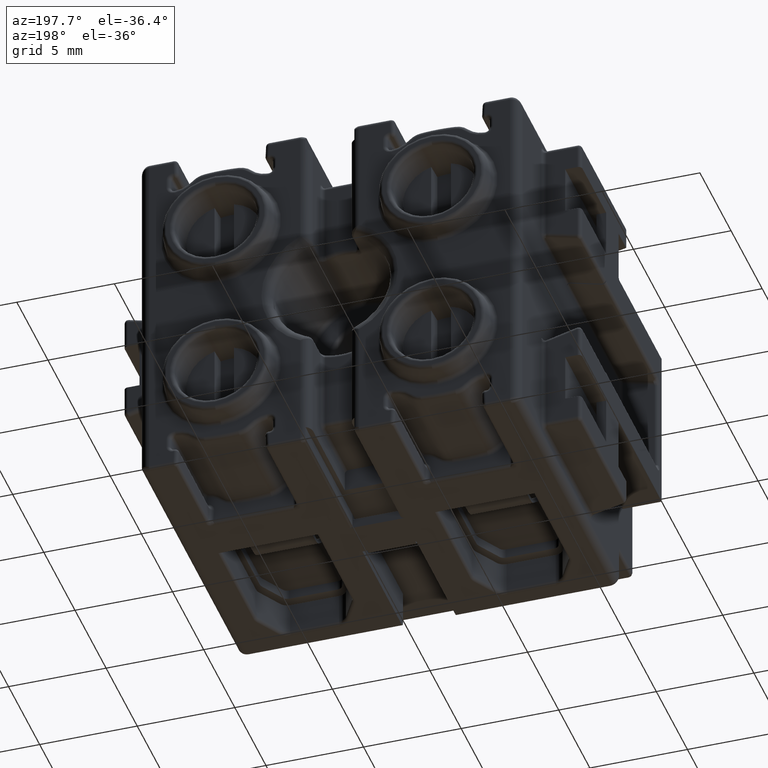
[diagram: clean part render]
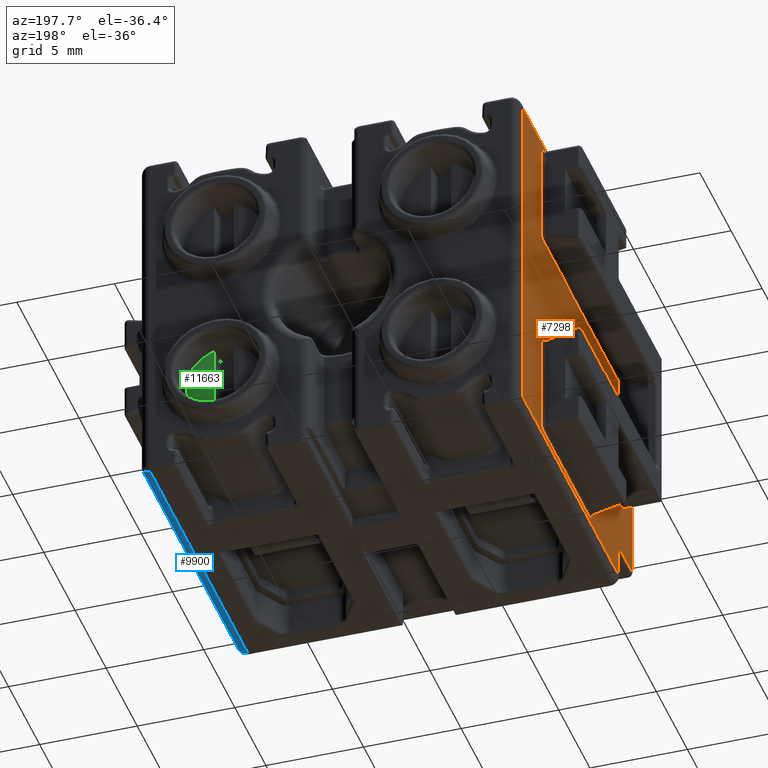
[diagram: same view with three faces highlighted in distinct colors, each labeled with its STEP entity id]
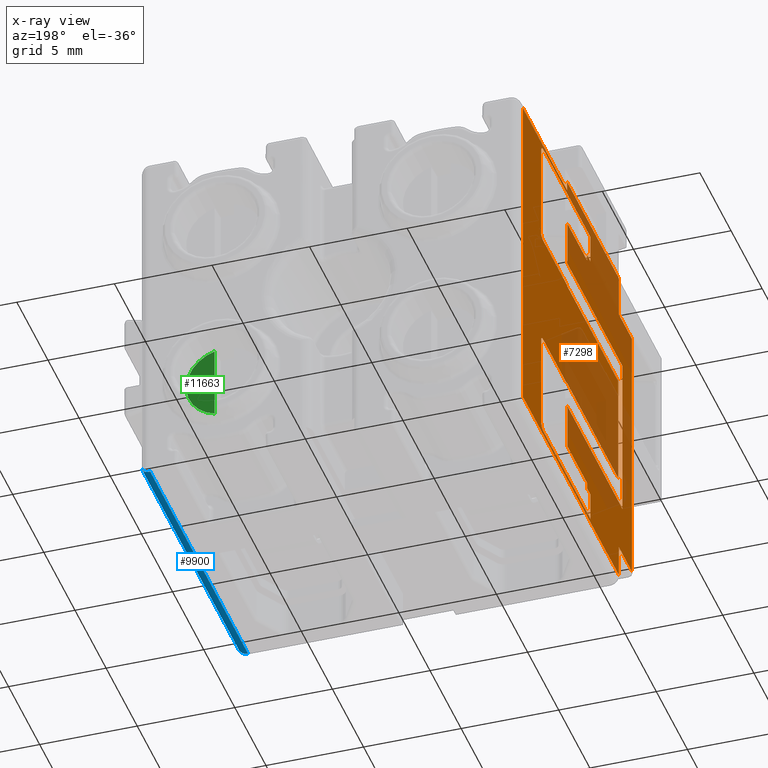
[diagram: x-ray of the same camera — body ghosted, the three highlighted faces saturated]
A machine part, auxiliary view with three faces highlighted in distinct colors.
The next image is the same camera in x-ray (body ghosted, the three faces saturated) — at least one of them is partly hidden behind the body in this view.
Their STEP definitions:

[orange] entity #7298 — the highlighted planar face has unit normal (-1, 0, 0).
#2778 = VECTOR ( 'NONE', #26738, 1000.000000000000000 ) ;
#3091 = VECTOR ( 'NONE', #26439, 1000.000000000000000 ) ;
#3103 = VECTOR ( 'NONE', #31110, 1000.000000000000000 ) ;
#3116 = VECTOR ( 'NONE', #26464, 1000.000000000000000 ) ;
#3161 = VECTOR ( 'NONE', #26434, 1000.000000000000000 ) ;
#3963 = CARTESIAN_POINT ( 'NONE',  ( -0.7434446301121630000, 43.74973753280829700, -18.92283801961510300 ) ) ;
#3972 = CARTESIAN_POINT ( 'NONE',  ( -0.7434446301121630000, 28.34973753280830200, -0.9228380196151170200 ) ) ;
#3982 = CARTESIAN_POINT ( 'NONE',  ( -0.7434446301121630000, 40.44973753280830000, -13.17259704189269900 ) ) ;
#3994 = CARTESIAN_POINT ( 'NONE',  ( -0.7434446301121630000, 40.84973753280829100, -6.856710428136580000 ) ) ;
#3995 = CARTESIAN_POINT ( 'NONE',  ( -0.7434446301121630000, 26.24973753280830000, -17.22283801961510400 ) ) ;
#3997 = CARTESIAN_POINT ( 'NONE',  ( -0.7434446301121630000, 40.84973753280829100, -13.48896561109364200 ) ) ;
#4001 = CARTESIAN_POINT ( 'NONE',  ( -0.7434446301121630000, 40.84973753280829100, -18.32283801961514800 ) ) ;
#4010 = CARTESIAN_POINT ( 'NONE',  ( -0.7434446301121631100, 33.42916039621430700, -16.92283801961509900 ) ) ;
#4278 = EDGE_LOOP ( 'NONE', ( #4649, #4703, #4643, #4598, #4607, #4610, #4608, #4639, #4668, #4618 ) ) ;
#4310 = EDGE_LOOP ( 'NONE', ( #4569, #4640, #4628, #4597, #4533, #4641, #4551, #4654, #4563, #4580, #4631, #4592, #4537, #4564, #4651, #4637, #4681, #4595, #4658, #4684, #4718, #4601, #4646, #4596, #4604, #4657, #4647, #4630, #4635, #4591, #4673, #4627 ) ) ;
#4533 = ORIENTED_EDGE ( 'NONE', *, *, #11942, .T. ) ;
#4537 = ORIENTED_EDGE ( 'NONE', *, *, #7374, .T. ) ;
#4551 = ORIENTED_EDGE ( 'NONE', *, *, #7364, .T. ) ;
#4563 = ORIENTED_EDGE ( 'NONE', *, *, #7372, .T. ) ;
#4564 = ORIENTED_EDGE ( 'NONE', *, *, #7377, .T. ) ;
#4569 = ORIENTED_EDGE ( 'NONE', *, *, #7379, .T. ) ;
#4580 = ORIENTED_EDGE ( 'NONE', *, *, #7581, .T. ) ;
#4591 = ORIENTED_EDGE ( 'NONE', *, *, #11936, .T. ) ;
#4592 = ORIENTED_EDGE ( 'NONE', *, *, #7384, .T. ) ;
#4595 = ORIENTED_EDGE ( 'NONE', *, *, #11947, .T. ) ;
#4596 = ORIENTED_EDGE ( 'NONE', *, *, #7590, .T. ) ;
#4597 = ORIENTED_EDGE ( 'NONE', *, *, #11956, .T. ) ;
#4598 = ORIENTED_EDGE ( 'NONE', *, *, #7370, .T. ) ;
#4601 = ORIENTED_EDGE ( 'NONE', *, *, #7404, .T. ) ;
#4604 = ORIENTED_EDGE ( 'NONE', *, *, #7376, .T. ) ;
#4607 = ORIENTED_EDGE ( 'NONE', *, *, #7381, .T. ) ;
#4608 = ORIENTED_EDGE ( 'NONE', *, *, #31182, .T. ) ;
#4610 = ORIENTED_EDGE ( 'NONE', *, *, #31207, .T. ) ;
#4618 = ORIENTED_EDGE ( 'NONE', *, *, #31175, .T. ) ;
#4627 = ORIENTED_EDGE ( 'NONE', *, *, #11781, .T. ) ;
#4628 = ORIENTED_EDGE ( 'NONE', *, *, #7471, .T. ) ;
#4630 = ORIENTED_EDGE ( 'NONE', *, *, #7367, .T. ) ;
#4631 = ORIENTED_EDGE ( 'NONE', *, *, #7385, .F. ) ;
#4635 = ORIENTED_EDGE ( 'NONE', *, *, #11919, .T. ) ;
#4637 = ORIENTED_EDGE ( 'NONE', *, *, #7383, .T. ) ;
#4639 = ORIENTED_EDGE ( 'NONE', *, *, #7484, .F. ) ;
#4640 = ORIENTED_EDGE ( 'NONE', *, *, #11785, .F. ) ;
#4641 = ORIENTED_EDGE ( 'NONE', *, *, #7373, .T. ) ;
#4643 = ORIENTED_EDGE ( 'NONE', *, *, #7408, .T. ) ;
#4646 = ORIENTED_EDGE ( 'NONE', *, *, #7375, .F. ) ;
#4647 = ORIENTED_EDGE ( 'NONE', *, *, #7393, .F. ) ;
#4649 = ORIENTED_EDGE ( 'NONE', *, *, #7421, .T. ) ;
#4651 = ORIENTED_EDGE ( 'NONE', *, *, #7585, .F. ) ;
#4654 = ORIENTED_EDGE ( 'NONE', *, *, #7559, .T. ) ;
#4657 = ORIENTED_EDGE ( 'NONE', *, *, #7675, .F. ) ;
#4658 = ORIENTED_EDGE ( 'NONE', *, *, #7504, .F. ) ;
#4668 = ORIENTED_EDGE ( 'NONE', *, *, #31200, .T. ) ;
#4673 = ORIENTED_EDGE ( 'NONE', *, *, #7410, .T. ) ;
#4681 = ORIENTED_EDGE ( 'NONE', *, *, #7380, .T. ) ;
#4684 = ORIENTED_EDGE ( 'NONE', *, *, #11927, .T. ) ;
#4703 = ORIENTED_EDGE ( 'NONE', *, *, #7369, .T. ) ;
#4718 = ORIENTED_EDGE ( 'NONE', *, *, #7402, .T. ) ;
#5198 = CARTESIAN_POINT ( 'NONE',  ( -0.7434446301121630000, 32.89326201135205000, -1.622838019615115100 ) ) ;
#5199 = CARTESIAN_POINT ( 'NONE',  ( -0.7434446301121630000, 36.64973753280830200, -13.12083323287220100 ) ) ;
#5237 = CARTESIAN_POINT ( 'NONE',  ( -0.7434446301121631100, 33.42916039621430700, -3.422838019615116200 ) ) ;
#5260 = CARTESIAN_POINT ( 'NONE',  ( -0.7434446301121630000, 40.44973753280830000, -18.72283801961515000 ) ) ;
#5263 = CARTESIAN_POINT ( 'NONE',  ( -0.7434446301121630000, 33.42916039621430700, -3.097838019615115200 ) ) ;
#5267 = CARTESIAN_POINT ( 'NONE',  ( -0.7434446301121630000, 28.34973753280830200, -17.22283801961510400 ) ) ;
#5270 = CARTESIAN_POINT ( 'NONE',  ( -0.7434446301121630000, 28.34973753280830200, -18.92283801961510300 ) ) ;
#5279 = CARTESIAN_POINT ( 'NONE',  ( -0.7434446301121630000, 32.89326201135205000, -17.24783801961509900 ) ) ;
#5282 = CARTESIAN_POINT ( 'NONE',  ( -0.7434446301121630000, 40.84973753280829100, -2.022838019615115000 ) ) ;
#5284 = CARTESIAN_POINT ( 'NONE',  ( -0.7434446301121630000, 43.74973753280829700, -1.422838019615118000 ) ) ;
#5289 = CARTESIAN_POINT ( 'NONE',  ( -0.7434446301121630000, 40.44973753280830000, -1.622838019615115100 ) ) ;
#5290 = CARTESIAN_POINT ( 'NONE',  ( -0.7434446301121630000, 28.44973753280830000, -13.12083323287220100 ) ) ;
#5293 = CARTESIAN_POINT ( 'NONE',  ( -0.7434446301121630000, 36.64973753280830200, -13.17259704189269900 ) ) ;
#5303 = CARTESIAN_POINT ( 'NONE',  ( -0.7434446301121630000, 28.34973753280830200, -3.122838019615115100 ) ) ;
#5305 = CARTESIAN_POINT ( 'NONE',  ( -0.7434446301121630000, 26.24973753280830000, -3.122838019615120000 ) ) ;
#5322 = VECTOR ( 'NONE', #30556, 1000.000000000000000 ) ;
#5323 = VECTOR ( 'NONE', #30640, 1000.000000000000000 ) ;
#5324 = VECTOR ( 'NONE', #30610, 1000.000000000000000 ) ;
#5346 = VECTOR ( 'NONE', #30634, 1000.000000000000000 ) ;
#5354 = VECTOR ( 'NONE', #30677, 1000.000000000000000 ) ;
#5406 = VECTOR ( 'NONE', #30878, 1000.000000000000000 ) ;
#5426 = VECTOR ( 'NONE', #30970, 1000.000000000000000 ) ;
#5475 = VECTOR ( 'NONE', #30855, 1000.000000000000000 ) ;
#5639 = AXIS2_PLACEMENT_3D ( 'NONE', #30164, #30137, #30184 ) ;
#5690 = VERTEX_POINT ( 'NONE', #5199 ) ;
#5718 = VERTEX_POINT ( 'NONE', #5198 ) ;
#5757 = VERTEX_POINT ( 'NONE', #5293 ) ;
#5766 = VERTEX_POINT ( 'NONE', #5260 ) ;
#5781 = VECTOR ( 'NONE', #30530, 1000.000000000000000 ) ;
#5788 = VERTEX_POINT ( 'NONE', #5279 ) ;
#5789 = VERTEX_POINT ( 'NONE', #5263 ) ;
#5791 = VERTEX_POINT ( 'NONE', #5289 ) ;
#5792 = VECTOR ( 'NONE', #30460, 1000.000000000000000 ) ;
#5793 = VERTEX_POINT ( 'NONE', #5290 ) ;
#5794 = CIRCLE ( 'NONE', #5808, 0.3999999999999999700 ) ;
#5797 = VECTOR ( 'NONE', #30478, 1000.000000000000000 ) ;
#5801 = VECTOR ( 'NONE', #30538, 1000.000000000000000 ) ;
#5803 = VECTOR ( 'NONE', #30510, 1000.000000000000000 ) ;
#5806 = VERTEX_POINT ( 'NONE', #5267 ) ;
#5808 = AXIS2_PLACEMENT_3D ( 'NONE', #30519, #30520, #30521 ) ;
#5818 = VERTEX_POINT ( 'NONE', #5284 ) ;
#5817 = VECTOR ( 'NONE', #30540, 1000.000000000000000 ) ;
#5823 = VERTEX_POINT ( 'NONE', #5237 ) ;
#5824 = VECTOR ( 'NONE', #30528, 1000.000000000000000 ) ;
#5829 = VERTEX_POINT ( 'NONE', #5270 ) ;
#5834 = VECTOR ( 'NONE', #30467, 1000.000000000000000 ) ;
#5843 = VERTEX_POINT ( 'NONE', #5282 ) ;
#5850 = VECTOR ( 'NONE', #30539, 1000.000000000000000 ) ;
#5852 = VECTOR ( 'NONE', #30503, 1000.000000000000000 ) ;
#5856 = VECTOR ( 'NONE', #30590, 1000.000000000000000 ) ;
#5858 = VECTOR ( 'NONE', #30506, 1000.000000000000000 ) ;
#5864 = VERTEX_POINT ( 'NONE', #5303 ) ;
#5865 = VECTOR ( 'NONE', #30481, 1000.000000000000000 ) ;
#5873 = VERTEX_POINT ( 'NONE', #5305 ) ;
#5874 = CIRCLE ( 'NONE', #5892, 0.4000000000000010200 ) ;
#5888 = VERTEX_POINT ( 'NONE', #4010 ) ;
#5892 = AXIS2_PLACEMENT_3D ( 'NONE', #30586, #30554, #30553 ) ;
#5902 = VERTEX_POINT ( 'NONE', #3994 ) ;
#5903 = VERTEX_POINT ( 'NONE', #3995 ) ;
#5929 = VERTEX_POINT ( 'NONE', #3997 ) ;
#5930 = VERTEX_POINT ( 'NONE', #3963 ) ;
#5939 = VERTEX_POINT ( 'NONE', #3972 ) ;
#5941 = VERTEX_POINT ( 'NONE', #4001 ) ;
#5944 = VERTEX_POINT ( 'NONE', #3982 ) ;
#7298 = ADVANCED_FACE ( 'NONE', ( #30140, #30136 ), #30175, .T. ) ;
#7364 = EDGE_CURVE ( 'NONE', #5888, #21027, #30477, .T. ) ;
#7367 = EDGE_CURVE ( 'NONE', #5823, #20848, #30491, .T. ) ;
#7369 = EDGE_CURVE ( 'NONE', #5829, #5806, #30466, .T. ) ;
#7370 = EDGE_CURVE ( 'NONE', #5903, #5873, #30468, .T. ) ;
#7372 = EDGE_CURVE ( 'NONE', #5788, #21059, #30469, .T. ) ;
#7373 = EDGE_CURVE ( 'NONE', #20963, #5888, #30545, .T. ) ;
#7374 = EDGE_CURVE ( 'NONE', #5929, #5944, #17002, .T. ) ;
#7375 = EDGE_CURVE ( 'NONE', #5791, #5843, #5794, .T. ) ;
#7376 = EDGE_CURVE ( 'NONE', #5718, #21034, #30546, .T. ) ;
#7377 = EDGE_CURVE ( 'NONE', #5944, #5757, #30523, .T. ) ;
#7379 = EDGE_CURVE ( 'NONE', #20799, #20792, #30501, .T. ) ;
#7380 = EDGE_CURVE ( 'NONE', #5793, #20644, #30527, .T. ) ;
#7381 = EDGE_CURVE ( 'NONE', #5873, #5864, #30542, .T. ) ;
#7383 = EDGE_CURVE ( 'NONE', #5690, #5793, #30534, .T. ) ;
#7384 = EDGE_CURVE ( 'NONE', #5941, #5929, #30508, .T. ) ;
#7385 = EDGE_CURVE ( 'NONE', #5941, #5766, #5874, .T. ) ;
#7393 = EDGE_CURVE ( 'NONE', #5823, #5789, #30589, .T. ) ;
#7402 = EDGE_CURVE ( 'NONE', #20702, #5902, #16995, .T. ) ;
#7404 = EDGE_CURVE ( 'NONE', #5902, #5843, #30606, .T. ) ;
#7408 = EDGE_CURVE ( 'NONE', #5806, #5903, #30600, .T. ) ;
#7410 = EDGE_CURVE ( 'NONE', #20999, #20767, #30622, .T. ) ;
#7421 = EDGE_CURVE ( 'NONE', #5930, #5829, #30673, .T. ) ;
#7471 = EDGE_CURVE ( 'NONE', #20811, #20887, #30803, .T. ) ;
#7484 = EDGE_CURVE ( 'NONE', #20934, #21035, #30843, .T. ) ;
#7504 = EDGE_CURVE ( 'NONE', #20690, #20694, #30893, .T. ) ;
#7559 = EDGE_CURVE ( 'NONE', #21027, #5788, #31078, .T. ) ;
#7581 = EDGE_CURVE ( 'NONE', #21059, #5766, #26453, .T. ) ;
#7585 = EDGE_CURVE ( 'NONE', #5690, #5757, #26427, .T. ) ;
#7590 = EDGE_CURVE ( 'NONE', #5791, #5718, #26457, .T. ) ;
#7675 = EDGE_CURVE ( 'NONE', #5789, #21034, #26711, .T. ) ;
#10361 = CARTESIAN_POINT ( 'NONE',  ( -0.7434446301121630000, 28.44973753280830000, -7.224842806358029900 ) ) ;
#10425 = CARTESIAN_POINT ( 'NONE',  ( -0.7434446301121630000, 36.64973753280830200, -7.224842806358020100 ) ) ;
#10431 = CARTESIAN_POINT ( 'NONE',  ( -0.7434446301121630000, 36.64973753280830200, -7.173078997337520400 ) ) ;
#10437 = CARTESIAN_POINT ( 'NONE',  ( -0.7434446301121630000, 40.44973753280830000, -7.173078997337520400 ) ) ;
#10497 = CARTESIAN_POINT ( 'NONE',  ( -0.7434446301121630000, 36.64973753280830200, -5.847838019615110700 ) ) ;
#10499 = CARTESIAN_POINT ( 'NONE',  ( -0.7434446301121630000, 27.74973753280830000, -14.49783801961510000 ) ) ;
#10512 = CARTESIAN_POINT ( 'NONE',  ( -0.7434446301121630000, 27.74973753280830000, -5.847838019615109900 ) ) ;
#10561 = CARTESIAN_POINT ( 'NONE',  ( -0.7434446301058295100, 36.63447075656644400, -14.62297125076029900 ) ) ;
#10562 = CARTESIAN_POINT ( 'NONE',  ( -0.7434446301121630000, 36.63447075656391400, -3.422838019615116200 ) ) ;
#10573 = CARTESIAN_POINT ( 'NONE',  ( -0.7434446301121630000, 36.64973753280830200, -14.49783801961510000 ) ) ;
#10588 = CARTESIAN_POINT ( 'NONE',  ( -0.7434446301121630000, 36.64973753280830200, -14.62283801961875100 ) ) ;
#10648 = CARTESIAN_POINT ( 'NONE',  ( -0.7434446301121630000, 36.63447075656391400, -16.92283801961509900 ) ) ;
#10675 = CARTESIAN_POINT ( 'NONE',  ( -0.7434446301121630000, 36.64973753280830200, -1.422838019615117800 ) ) ;
#10691 = CARTESIAN_POINT ( 'NONE',  ( -0.7434446301121632200, 36.63447075656434000, -5.722704788469895800 ) ) ;
#10714 = CARTESIAN_POINT ( 'NONE',  ( -0.7434446301121630000, 36.64973753280830200, -5.722838019607459100 ) ) ;
#10727 = CARTESIAN_POINT ( 'NONE',  ( -0.7434446301121630000, 32.89326201135205000, -18.72283801961510000 ) ) ;
#10745 = CARTESIAN_POINT ( 'NONE',  ( -0.7434446301121630000, 32.89326201135205000, -3.097838019615115200 ) ) ;
#10746 = CARTESIAN_POINT ( 'NONE',  ( -0.7434446301121630000, 33.42916039621430700, -17.24783801961509900 ) ) ;
#10747 = CARTESIAN_POINT ( 'NONE',  ( -0.7434446301121630000, 36.64973753280830200, -0.9228380196151170200 ) ) ;
#10834 = LINE ( 'NONE', #10841, #17475 ) ;
#10836 = DIRECTION ( 'NONE',  ( -0.0000000000000000000, -0.0000000000000000000, -1.000000000000000000 ) ) ;
#10841 = CARTESIAN_POINT ( 'NONE',  ( -0.7434446301121630000, 43.74973753280829700, -39.06492826032194900 ) ) ;
#10849 = LINE ( 'NONE', #10864, #17525 ) ;
#10858 = DIRECTION ( 'NONE',  ( 0.0000000000000000000, 1.000000000000000000, 0.0000000000000000000 ) ) ;
#10864 = CARTESIAN_POINT ( 'NONE',  ( -0.7434446301121630000, 27.24973753280830000, -0.9228380196151170200 ) ) ;
#10915 = LINE ( 'NONE', #10944, #17566 ) ;
#10916 = DIRECTION ( 'NONE',  ( -0.0000000000000000000, -0.0000000000000000000, 1.000000000000000000 ) ) ;
#10928 = CARTESIAN_POINT ( 'NONE',  ( -0.7434446301121630000, 26.74973753280830000, -1.422838019615118000 ) ) ;
#10940 = LINE ( 'NONE', #10928, #17678 ) ;
#10944 = CARTESIAN_POINT ( 'NONE',  ( -0.7434446301121630000, 28.34973753280830200, -39.06492826032194900 ) ) ;
#10957 = DIRECTION ( 'NONE',  ( 0.0000000000000000000, 1.000000000000000000, 0.0000000000000000000 ) ) ;
#11781 = EDGE_CURVE ( 'NONE', #20767, #20799, #13008, .T. ) ;
#11785 = EDGE_CURVE ( 'NONE', #20811, #20792, #13018, .T. ) ;
#11919 = EDGE_CURVE ( 'NONE', #20848, #20951, #21933, .T. ) ;
#11927 = EDGE_CURVE ( 'NONE', #20690, #20702, #22032, .T. ) ;
#11936 = EDGE_CURVE ( 'NONE', #20951, #20999, #22145, .T. ) ;
#11942 = EDGE_CURVE ( 'NONE', #20828, #20963, #22157, .T. ) ;
#11947 = EDGE_CURVE ( 'NONE', #20644, #20694, #22074, .T. ) ;
#11956 = EDGE_CURVE ( 'NONE', #20887, #20828, #22228, .T. ) ;
#13008 = LINE ( 'NONE', #13011, #24357 ) ;
#13011 = CARTESIAN_POINT ( 'NONE',  ( -0.7434446301121630000, 33.27033910919760000, -5.847838019615109900 ) ) ;
#13014 = DIRECTION ( 'NONE',  ( -0.0000000000000000000, -1.000000000000000000, -0.0000000000000000000 ) ) ;
#13018 = LINE ( 'NONE', #13051, #24451 ) ;
#13051 = CARTESIAN_POINT ( 'NONE',  ( -0.7434446301121630000, 33.27033910919760000, -14.49783801961510000 ) ) ;
#13062 = DIRECTION ( 'NONE',  ( 0.0000000000000000000, -1.000000000000000000, 0.0000000000000000000 ) ) ;
#16995 = B_SPLINE_CURVE_WITH_KNOTS ( 'NONE', 3,
 ( #30641, #30611, #30615, #30618, #30639, #30644, #30616, #30601, #30603, #30609 ),
 .UNSPECIFIED., .F., .F.,
 ( 4, 1, 1, 2, 2, 4 ),
 ( 0.0000000000000000000, 0.2499999999999965600, 0.3749999999999942800, 0.4374999999999931700, 0.4999999999999920100, 1.000000000000000000 ),
 .UNSPECIFIED. ) ;
#17002 = B_SPLINE_CURVE_WITH_KNOTS ( 'NONE', 3,
 ( #30511, #30516, #30525, #30547, #30549, #30531, #30509, #30548, #30513, #30518, #30517 ),
 .UNSPECIFIED., .F., .F.,
 ( 4, 1, 1, 1, 2, 2, 4 ),
 ( 0.0000000000000000000, 0.2500000000000366900, 0.3750000000000422400, 0.4375000000000416900, 0.4687500000000442400, 0.5000000000000468500, 1.000000000000000000 ),
 .UNSPECIFIED. ) ;
#17475 = VECTOR ( 'NONE', #10836, 1000.000000000000000 ) ;
#17525 = VECTOR ( 'NONE', #10858, 1000.000000000000000 ) ;
#17566 = VECTOR ( 'NONE', #10916, 1000.000000000000000 ) ;
#17678 = VECTOR ( 'NONE', #10957, 1000.000000000000000 ) ;
#20644 = VERTEX_POINT ( 'NONE', #10361 ) ;
#20690 = VERTEX_POINT ( 'NONE', #10431 ) ;
#20694 = VERTEX_POINT ( 'NONE', #10425 ) ;
#20702 = VERTEX_POINT ( 'NONE', #10437 ) ;
#20767 = VERTEX_POINT ( 'NONE', #10497 ) ;
#20792 = VERTEX_POINT ( 'NONE', #10499 ) ;
#20799 = VERTEX_POINT ( 'NONE', #10512 ) ;
#20811 = VERTEX_POINT ( 'NONE', #10573 ) ;
#20828 = VERTEX_POINT ( 'NONE', #10561 ) ;
#20848 = VERTEX_POINT ( 'NONE', #10562 ) ;
#20887 = VERTEX_POINT ( 'NONE', #10588 ) ;
#20934 = VERTEX_POINT ( 'NONE', #10675 ) ;
#20951 = VERTEX_POINT ( 'NONE', #10691 ) ;
#20963 = VERTEX_POINT ( 'NONE', #10648 ) ;
#20999 = VERTEX_POINT ( 'NONE', #10714 ) ;
#21027 = VERTEX_POINT ( 'NONE', #10746 ) ;
#21034 = VERTEX_POINT ( 'NONE', #10745 ) ;
#21035 = VERTEX_POINT ( 'NONE', #10747 ) ;
#21059 = VERTEX_POINT ( 'NONE', #10727 ) ;
#21933 = LINE ( 'NONE', #21968, #24840 ) ;
#21968 = CARTESIAN_POINT ( 'NONE',  ( -0.7434446301121630000, 36.63447075656644400, -16.95797843452565000 ) ) ;
#22026 = DIRECTION ( 'NONE',  ( 0.0000000000000000000, 1.000000000000000000, 0.0000000000000000000 ) ) ;
#22032 = LINE ( 'NONE', #22048, #24790 ) ;
#22048 = CARTESIAN_POINT ( 'NONE',  ( -0.7434446301121630000, 26.74973753280830000, -7.173078997337520400 ) ) ;
#22050 = DIRECTION ( 'NONE',  ( -5.637157407534230300E-013, 0.0000000000000000000, -1.000000000000000000 ) ) ;
#22072 = DIRECTION ( 'NONE',  ( 5.637157407534230300E-013, -0.0000000000000000000, -1.000000000000000000 ) ) ;
#22074 = LINE ( 'NONE', #22079, #24917 ) ;
#22079 = CARTESIAN_POINT ( 'NONE',  ( -0.7434446301121630000, 36.64973753280830200, -7.224842806358029900 ) ) ;
#22085 = CARTESIAN_POINT ( 'NONE',  ( -0.7434446301121630000, 36.63447075656644400, -3.387697604704555100 ) ) ;
#22089 = CARTESIAN_POINT ( 'NONE',  ( -0.7434446301121632200, 36.64973753280838100, -5.722838019607768200 ) ) ;
#22109 = DIRECTION ( 'NONE',  ( -0.0000000000000000000, 0.9999619230641713100, -0.008726535498373952000 ) ) ;
#22145 = LINE ( 'NONE', #22089, #24808 ) ;
#22157 = LINE ( 'NONE', #22085, #24834 ) ;
#22195 = DIRECTION ( 'NONE',  ( -0.0000000000000000000, 1.000000000000000000, -0.0000000000000000000 ) ) ;
#22203 = DIRECTION ( 'NONE',  ( -0.0000000000000000000, -0.9999619230641713100, -0.008726535498373952000 ) ) ;
#22228 = LINE ( 'NONE', #22237, #24911 ) ;
#22237 = CARTESIAN_POINT ( 'NONE',  ( -0.7434446301121632200, 36.64973753280838100, -14.62283801962244200 ) ) ;
#24357 = VECTOR ( 'NONE', #13014, 1000.000000000000000 ) ;
#24451 = VECTOR ( 'NONE', #13062, 1000.000000000000000 ) ;
#24790 = VECTOR ( 'NONE', #22026, 1000.000000000000000 ) ;
#24808 = VECTOR ( 'NONE', #22109, 1000.000000000000100 ) ;
#24834 = VECTOR ( 'NONE', #22072, 1000.000000000000000 ) ;
#24840 = VECTOR ( 'NONE', #22050, 1000.000000000000000 ) ;
#24911 = VECTOR ( 'NONE', #22203, 1000.000000000000100 ) ;
#24917 = VECTOR ( 'NONE', #22195, 1000.000000000000000 ) ;
#26427 = LINE ( 'NONE', #26445, #3091 ) ;
#26431 = CARTESIAN_POINT ( 'NONE',  ( -0.7434446301121630000, 36.64973753280830200, -18.72283801961510000 ) ) ;
#26434 = DIRECTION ( 'NONE',  ( 0.0000000000000000000, -1.000000000000000000, 0.0000000000000000000 ) ) ;
#26439 = DIRECTION ( 'NONE',  ( 0.0000000000000000000, 0.0000000000000000000, -1.000000000000000000 ) ) ;
#26445 = CARTESIAN_POINT ( 'NONE',  ( -0.7434446301121630000, 36.64973753280830200, -39.06492826032194900 ) ) ;
#26453 = LINE ( 'NONE', #26431, #3116 ) ;
#26457 = LINE ( 'NONE', #26462, #3161 ) ;
#26462 = CARTESIAN_POINT ( 'NONE',  ( -0.7434446301121630000, 28.34973753280830200, -1.622838019615115100 ) ) ;
#26464 = DIRECTION ( 'NONE',  ( -0.0000000000000000000, 1.000000000000000000, -0.0000000000000000000 ) ) ;
#26711 = LINE ( 'NONE', #26717, #2778 ) ;
#26717 = CARTESIAN_POINT ( 'NONE',  ( -0.7434446301121630000, 27.24973753280830000, -3.097838019615115200 ) ) ;
#26738 = DIRECTION ( 'NONE',  ( 0.0000000000000000000, -1.000000000000000000, 0.0000000000000000000 ) ) ;
#30136 = FACE_OUTER_BOUND ( 'NONE', #4278, .T. ) ;
#30137 = DIRECTION ( 'NONE',  ( -1.000000000000000000, 0.0000000000000000000, 0.0000000000000000000 ) ) ;
#30140 = FACE_BOUND ( 'NONE', #4310, .T. ) ;
#30164 = CARTESIAN_POINT ( 'NONE',  ( -0.7434446301121630000, 27.24973753280830000, -39.06492826032194900 ) ) ;
#30175 = PLANE ( 'NONE',  #5639 ) ;
#30184 = DIRECTION ( 'NONE',  ( 0.0000000000000000000, 0.0000000000000000000, -1.000000000000000000 ) ) ;
#30460 = DIRECTION ( 'NONE',  ( 0.0000000000000000000, 1.000000000000000000, 0.0000000000000000000 ) ) ;
#30465 = CARTESIAN_POINT ( 'NONE',  ( -0.7434446301121630000, 33.42916039621430700, -14.49783801961510000 ) ) ;
#30466 = LINE ( 'NONE', #30476, #5834 ) ;
#30467 = DIRECTION ( 'NONE',  ( 0.0000000000000000000, 0.0000000000000000000, 1.000000000000000000 ) ) ;
#30468 = LINE ( 'NONE', #30470, #5797 ) ;
#30469 = LINE ( 'NONE', #30485, #5781 ) ;
#30470 = CARTESIAN_POINT ( 'NONE',  ( -0.7434446301121630000, 26.24973753280830000, -39.06492826032194900 ) ) ;
#30476 = CARTESIAN_POINT ( 'NONE',  ( -0.7434446301121630000, 28.34973753280830200, -39.06492826032194900 ) ) ;
#30477 = LINE ( 'NONE', #30465, #5865 ) ;
#30478 = DIRECTION ( 'NONE',  ( -0.0000000000000000000, -0.0000000000000000000, 1.000000000000000000 ) ) ;
#30481 = DIRECTION ( 'NONE',  ( 0.0000000000000000000, 0.0000000000000000000, -1.000000000000000000 ) ) ;
#30485 = CARTESIAN_POINT ( 'NONE',  ( -0.7434446301121630000, 32.89326201135205000, -16.17283801961509900 ) ) ;
#30491 = LINE ( 'NONE', #30497, #5792 ) ;
#30497 = CARTESIAN_POINT ( 'NONE',  ( -0.7434446301121630000, 28.42847040651767900, -3.422838019615116200 ) ) ;
#30501 = LINE ( 'NONE', #30515, #5850 ) ;
#30503 = DIRECTION ( 'NONE',  ( 0.0000000000000000000, 0.0000000000000000000, 1.000000000000000000 ) ) ;
#30504 = CARTESIAN_POINT ( 'NONE',  ( -0.7434446301121630000, 27.24973753280830000, -3.122838019615120000 ) ) ;
#30506 = DIRECTION ( 'NONE',  ( 0.0000000000000000000, -1.000000000000000000, 0.0000000000000000000 ) ) ;
#30507 = CARTESIAN_POINT ( 'NONE',  ( -0.7434446301121630000, 32.89326201135205000, -16.17283801961509900 ) ) ;
#30508 = LINE ( 'NONE', #30512, #5856 ) ;
#30509 = CARTESIAN_POINT ( 'NONE',  ( -0.7434446301121626600, 40.73146284690848500, -13.24885294019296500 ) ) ;
#30510 = DIRECTION ( 'NONE',  ( 0.0000000000000000000, 0.0000000000000000000, -1.000000000000000000 ) ) ;
#30511 = CARTESIAN_POINT ( 'NONE',  ( -0.7434446301121630000, 40.84973753280829100, -13.48896561109364200 ) ) ;
#30512 = CARTESIAN_POINT ( 'NONE',  ( -0.7434446301121630000, 40.84973753280829100, -39.06492826032194900 ) ) ;
#30513 = CARTESIAN_POINT ( 'NONE',  ( -0.7434446301121630000, 40.65142990660125100, -13.19619772243245000 ) ) ;
#30514 = CARTESIAN_POINT ( 'NONE',  ( -0.7434446301121630000, 28.42847040651767900, -16.92283801961509900 ) ) ;
#30515 = CARTESIAN_POINT ( 'NONE',  ( -0.7434446301121630000, 27.74973753280830000, -19.67283801961509900 ) ) ;
#30516 = CARTESIAN_POINT ( 'NONE',  ( -0.7434446301121631100, 40.84918282700152000, -13.43432786529812300 ) ) ;
#30517 = CARTESIAN_POINT ( 'NONE',  ( -0.7434446301121630000, 40.44973753280830000, -13.17259704189269900 ) ) ;
#30518 = CARTESIAN_POINT ( 'NONE',  ( -0.7434446301121628900, 40.56099576167971300, -13.17312636037433100 ) ) ;
#30519 = CARTESIAN_POINT ( 'NONE',  ( -0.7434446301121630000, 40.44973753280830000, -2.022838019615115000 ) ) ;
#30520 = DIRECTION ( 'NONE',  ( -1.000000000000000000, 0.0000000000000000000, 0.0000000000000000000 ) ) ;
#30521 = DIRECTION ( 'NONE',  ( 0.0000000000000000000, 0.0000000000000000000, 1.000000000000000000 ) ) ;
#30523 = LINE ( 'NONE', #30524, #5817 ) ;
#30524 = CARTESIAN_POINT ( 'NONE',  ( -0.7434446301121630000, 26.74973753280830000, -13.17259704189269900 ) ) ;
#30525 = CARTESIAN_POINT ( 'NONE',  ( -0.7434446301121631100, 40.83267960199202000, -13.36245524557315000 ) ) ;
#30527 = LINE ( 'NONE', #30532, #5852 ) ;
#30528 = DIRECTION ( 'NONE',  ( -0.0000000000000000000, 1.000000000000000000, -0.0000000000000000000 ) ) ;
#30530 = DIRECTION ( 'NONE',  ( 0.0000000000000000000, 0.0000000000000000000, -1.000000000000000000 ) ) ;
#30531 = CARTESIAN_POINT ( 'NONE',  ( -0.7434446301121631100, 40.74139600229727200, -13.25620987728664700 ) ) ;
#30532 = CARTESIAN_POINT ( 'NONE',  ( -0.7434446301121630000, 28.44973753280830000, -39.06492826032194900 ) ) ;
#30534 = LINE ( 'NONE', #30535, #5858 ) ;
#30535 = CARTESIAN_POINT ( 'NONE',  ( -0.7434446301121630000, 28.24973753280830000, -13.12083323287220100 ) ) ;
#30538 = DIRECTION ( 'NONE',  ( -0.0000000000000000000, -1.000000000000000000, -0.0000000000000000000 ) ) ;
#30539 = DIRECTION ( 'NONE',  ( 0.0000000000000000000, 0.0000000000000000000, -1.000000000000000000 ) ) ;
#30540 = DIRECTION ( 'NONE',  ( -0.0000000000000000000, -1.000000000000000000, -0.0000000000000000000 ) ) ;
#30542 = LINE ( 'NONE', #30504, #5824 ) ;
#30545 = LINE ( 'NONE', #30514, #5801 ) ;
#30546 = LINE ( 'NONE', #30507, #5803 ) ;
#30547 = CARTESIAN_POINT ( 'NONE',  ( -0.7434446301121632200, 40.78600129845704500, -13.29625085408857600 ) ) ;
#30548 = CARTESIAN_POINT ( 'NONE',  ( -0.7434446301121631100, 40.72539059638356200, -13.24466196591921200 ) ) ;
#30549 = CARTESIAN_POINT ( 'NONE',  ( -0.7434446301121631100, 40.75580601143361300, -13.26756040789492800 ) ) ;
#30553 = DIRECTION ( 'NONE',  ( 0.0000000000000000000, 0.0000000000000000000, 1.000000000000000000 ) ) ;
#30554 = DIRECTION ( 'NONE',  ( -1.000000000000000000, 0.0000000000000000000, 0.0000000000000000000 ) ) ;
#30556 = DIRECTION ( 'NONE',  ( 0.0000000000000000000, 0.0000000000000000000, 1.000000000000000000 ) ) ;
#30576 = CARTESIAN_POINT ( 'NONE',  ( -0.7434446301121630000, 33.42916039621430700, -5.847838019615109900 ) ) ;
#30586 = CARTESIAN_POINT ( 'NONE',  ( -0.7434446301121630000, 40.44973753280830000, -18.32283801961514800 ) ) ;
#30589 = LINE ( 'NONE', #30576, #5322 ) ;
#30590 = DIRECTION ( 'NONE',  ( 0.0000000000000000000, 0.0000000000000000000, 1.000000000000000000 ) ) ;
#30600 = LINE ( 'NONE', #30608, #5324 ) ;
#30601 = CARTESIAN_POINT ( 'NONE',  ( -0.7434446301121631100, 40.80571726631474400, -7.049519878195700300 ) ) ;
#30603 = CARTESIAN_POINT ( 'NONE',  ( -0.7434446301121628900, 40.84861645472656700, -6.967135050520149700 ) ) ;
#30606 = LINE ( 'NONE', #30627, #5323 ) ;
#30608 = CARTESIAN_POINT ( 'NONE',  ( -0.7434446301121630000, 27.24973753280830000, -17.22283801961510400 ) ) ;
#30609 = CARTESIAN_POINT ( 'NONE',  ( -0.7434446301121630000, 40.84973753280829100, -6.856710428136580000 ) ) ;
#30610 = DIRECTION ( 'NONE',  ( 0.0000000000000000000, -1.000000000000000000, 0.0000000000000000000 ) ) ;
#30611 = CARTESIAN_POINT ( 'NONE',  ( -0.7434446301121630000, 40.50463012784028600, -7.172817842137198400 ) ) ;
#30615 = CARTESIAN_POINT ( 'NONE',  ( -0.7434446301121630000, 40.57971237845983100, -7.163970214965185200 ) ) ;
#30616 = CARTESIAN_POINT ( 'NONE',  ( -0.7434446301121632200, 40.71045530523009900, -7.110658040284132400 ) ) ;
#30618 = CARTESIAN_POINT ( 'NONE',  ( -0.7434446301121630000, 40.65460921414123900, -7.138850168114266200 ) ) ;
#30622 = LINE ( 'NONE', #30628, #5346 ) ;
#30627 = CARTESIAN_POINT ( 'NONE',  ( -0.7434446301121630000, 40.84973753280829100, -39.06492826032194900 ) ) ;
#30628 = CARTESIAN_POINT ( 'NONE',  ( -0.7434446301121630000, 36.64973753280830200, -16.92283801961509900 ) ) ;
#30634 = DIRECTION ( 'NONE',  ( -0.0000000000000000000, -0.0000000000000000000, -1.000000000000000000 ) ) ;
#30639 = CARTESIAN_POINT ( 'NONE',  ( -0.7434446301121630000, 40.68398661728155500, -7.124913473360258800 ) ) ;
#30640 = DIRECTION ( 'NONE',  ( 0.0000000000000000000, 0.0000000000000000000, 1.000000000000000000 ) ) ;
#30641 = CARTESIAN_POINT ( 'NONE',  ( -0.7434446301121630000, 40.44973753280830000, -7.173078997337520400 ) ) ;
#30644 = CARTESIAN_POINT ( 'NONE',  ( -0.7434446301121630000, 40.70296683254773000, -7.114917685659952100 ) ) ;
#30645 = CARTESIAN_POINT ( 'NONE',  ( -0.7434446301121630000, 27.74973753280830000, -18.92283801961510300 ) ) ;
#30673 = LINE ( 'NONE', #30645, #5354 ) ;
#30677 = DIRECTION ( 'NONE',  ( -0.0000000000000000000, -1.000000000000000000, -0.0000000000000000000 ) ) ;
#30803 = LINE ( 'NONE', #30869, #5406 ) ;
#30843 = LINE ( 'NONE', #30859, #5475 ) ;
#30855 = DIRECTION ( 'NONE',  ( 0.0000000000000000000, 0.0000000000000000000, 1.000000000000000000 ) ) ;
#30859 = CARTESIAN_POINT ( 'NONE',  ( -0.7434446301121630000, 36.64973753280830200, -39.06492826032194900 ) ) ;
#30869 = CARTESIAN_POINT ( 'NONE',  ( -0.7434446301121630000, 36.64973753280830200, -16.92283801961509900 ) ) ;
#30878 = DIRECTION ( 'NONE',  ( -0.0000000000000000000, -0.0000000000000000000, -1.000000000000000000 ) ) ;
#30893 = LINE ( 'NONE', #30948, #5426 ) ;
#30948 = CARTESIAN_POINT ( 'NONE',  ( -0.7434446301121630000, 36.64973753280830200, -39.06492826032194900 ) ) ;
#30970 = DIRECTION ( 'NONE',  ( 0.0000000000000000000, 0.0000000000000000000, -1.000000000000000000 ) ) ;
#31078 = LINE ( 'NONE', #31101, #3103 ) ;
#31101 = CARTESIAN_POINT ( 'NONE',  ( -0.7434446301121630000, 33.27033910919760000, -17.24783801961509900 ) ) ;
#31110 = DIRECTION ( 'NONE',  ( 0.0000000000000000000, -1.000000000000000000, 0.0000000000000000000 ) ) ;
#31175 = EDGE_CURVE ( 'NONE', #5818, #5930, #10834, .T. ) ;
#31182 = EDGE_CURVE ( 'NONE', #5939, #21035, #10849, .T. ) ;
#31200 = EDGE_CURVE ( 'NONE', #20934, #5818, #10940, .T. ) ;
#31207 = EDGE_CURVE ( 'NONE', #5864, #5939, #10915, .T. ) ;

[blue] entity #9900 — the highlighted cylindrical surface (edge-blend (fillet) strip) has radius 0.5 mm, axis along (0, 1, 0).
#2395 = AXIS2_PLACEMENT_3D ( 'NONE', #13910, #13879, #13907 ) ;
#3155 = VECTOR ( 'NONE', #26576, 1000.000000000000000 ) ;
#3694 = ORIENTED_EDGE ( 'NONE', *, *, #9775, .T. ) ;
#3714 = ORIENTED_EDGE ( 'NONE', *, *, #9892, .T. ) ;
#3721 = ORIENTED_EDGE ( 'NONE', *, *, #11132, .F. ) ;
#3737 = ORIENTED_EDGE ( 'NONE', *, *, #7625, .F. ) ;
#3973 = CARTESIAN_POINT ( 'NONE',  ( 18.75655536988784900, 28.34973753280830200, -18.92283801961510300 ) ) ;
#4115 = EDGE_LOOP ( 'NONE', ( #3721, #3714, #3737, #3694 ) ) ;
#5226 = CARTESIAN_POINT ( 'NONE',  ( 18.25655536988784900, 28.34973753280830200, -19.42283801961509900 ) ) ;
#5251 = CARTESIAN_POINT ( 'NONE',  ( 18.75655536988784900, 43.74973753280829700, -18.92283801961510300 ) ) ;
#5302 = CARTESIAN_POINT ( 'NONE',  ( 18.25655536988784900, 44.04973753280829400, -19.42283801961509900 ) ) ;
#5692 = VERTEX_POINT ( 'NONE', #5226 ) ;
#5819 = VERTEX_POINT ( 'NONE', #5251 ) ;
#5851 = VERTEX_POINT ( 'NONE', #5302 ) ;
#5922 = VERTEX_POINT ( 'NONE', #3973 ) ;
#7625 = EDGE_CURVE ( 'NONE', #5851, #5692, #26522, .T. ) ;
#9775 = EDGE_CURVE ( 'NONE', #5851, #5819, #27833, .T. ) ;
#9892 = EDGE_CURVE ( 'NONE', #5922, #5692, #19198, .T. ) ;
#9900 = ADVANCED_FACE ( 'NONE', ( #13897 ), #13919, .T. ) ;
#11132 = EDGE_CURVE ( 'NONE', #5922, #5819, #14215, .T. ) ;
#13474 = CARTESIAN_POINT ( 'NONE',  ( 18.54944858870130300, 44.04973753280828000, -19.42283801961510300 ) ) ;
#13475 = CARTESIAN_POINT ( 'NONE',  ( 18.75655536988784900, 43.74973753280829700, -18.92283801961510300 ) ) ;
#13486 = CARTESIAN_POINT ( 'NONE',  ( 18.25655536988784900, 44.04973753280829400, -19.42283801961509900 ) ) ;
#13487 = CARTESIAN_POINT ( 'NONE',  ( 18.75655536988784900, 43.92547346409637000, -19.21573123842855300 ) ) ;
#13879 = DIRECTION ( 'NONE',  ( 0.0000000000000000000, 1.000000000000000000, 0.0000000000000000000 ) ) ;
#13893 = DIRECTION ( 'NONE',  ( -0.0000000000000000000, 1.000000000000000000, -0.0000000000000000000 ) ) ;
#13897 = FACE_OUTER_BOUND ( 'NONE', #4115, .T. ) ;
#13903 = CARTESIAN_POINT ( 'NONE',  ( 18.25655536988784900, 28.34973753280830200, -18.92283801961510300 ) ) ;
#13907 = DIRECTION ( 'NONE',  ( 0.0000000000000000000, 0.0000000000000000000, 1.000000000000000000 ) ) ;
#13910 = CARTESIAN_POINT ( 'NONE',  ( 18.25655536988784900, 29.24973753280830400, -18.92283801961510300 ) ) ;
#13917 = DIRECTION ( 'NONE',  ( 0.0000000000000000000, 0.0000000000000000000, -1.000000000000000000 ) ) ;
#13919 = CYLINDRICAL_SURFACE ( 'NONE', #2395, 0.5000000000000004400 ) ;
#14197 = DIRECTION ( 'NONE',  ( -0.0000000000000000000, 1.000000000000000000, -0.0000000000000000000 ) ) ;
#14202 = CARTESIAN_POINT ( 'NONE',  ( 18.75655536988784900, 36.64973753280830200, -18.92283801961510300 ) ) ;
#14215 = LINE ( 'NONE', #14202, #15404 ) ;
#15404 = VECTOR ( 'NONE', #14197, 1000.000000000000000 ) ;
#19198 = CIRCLE ( 'NONE', #19255, 0.5000000000000004400 ) ;
#19255 = AXIS2_PLACEMENT_3D ( 'NONE', #13903, #13893, #13917 ) ;
#26522 = LINE ( 'NONE', #26526, #3155 ) ;
#26526 = CARTESIAN_POINT ( 'NONE',  ( 18.25655536988784900, 27.74973753280830000, -19.42283801961509900 ) ) ;
#26576 = DIRECTION ( 'NONE',  ( 0.0000000000000000000, -1.000000000000000000, 0.0000000000000000000 ) ) ;
#27833 =( BOUNDED_CURVE ( )  B_SPLINE_CURVE ( 3, ( #13486, #13474, #13487, #13475 ),
 .UNSPECIFIED., .F., .T. ) 
 B_SPLINE_CURVE_WITH_KNOTS ( ( 4, 4 ),
 ( 3.141592653589793100, 4.712388980384689700 ),
 .UNSPECIFIED. ) 
 CURVE ( )  GEOMETRIC_REPRESENTATION_ITEM ( )  RATIONAL_B_SPLINE_CURVE ( ( 1.000000000000000000, 0.8047378541243649400, 0.8047378541243649400, 1.000000000000000000 ) ) 
 REPRESENTATION_ITEM ( '' )  );

[green] entity #11663 — the highlighted planar face has unit normal (0, 1, 0).
#2244 = EDGE_LOOP ( 'NONE', ( #20512, #20504 ) ) ;
#6547 = VERTEX_POINT ( 'NONE', #8845 ) ;
#6579 = VERTEX_POINT ( 'NONE', #8819 ) ;
#8819 = CARTESIAN_POINT ( 'NONE',  ( 15.05655536988783500, 43.74973753280829700, -16.40637991911734900 ) ) ;
#8845 = CARTESIAN_POINT ( 'NONE',  ( 15.05655536988783500, 43.74973753280829700, -12.63929612011290100 ) ) ;
#11095 = CARTESIAN_POINT ( 'NONE',  ( 15.05655536988783500, 43.74973753280829700, -17.57668626195040000 ) ) ;
#11102 = DIRECTION ( 'NONE',  ( 0.0000000000000000000, 0.0000000000000000000, -1.000000000000000000 ) ) ;
#11118 = LINE ( 'NONE', #11095, #17744 ) ;
#11663 = ADVANCED_FACE ( 'NONE', ( #12574 ), #12559, .T. ) ;
#12546 = DIRECTION ( 'NONE',  ( 0.0000000000000000000, 1.000000000000000000, 0.0000000000000000000 ) ) ;
#12553 = CARTESIAN_POINT ( 'NONE',  ( 16.50533193152348900, 43.74973753280829700, -14.52283801961512000 ) ) ;
#12559 = PLANE ( 'NONE',  #24154 ) ;
#12574 = FACE_OUTER_BOUND ( 'NONE', #2244, .T. ) ;
#12583 = DIRECTION ( 'NONE',  ( 0.0000000000000000000, 0.0000000000000000000, 1.000000000000000000 ) ) ;
#16332 = CARTESIAN_POINT ( 'NONE',  ( 14.55655536988783400, 43.74973753280829700, -14.52283801961512000 ) ) ;
#16341 = DIRECTION ( 'NONE',  ( 0.0000000000000000000, -1.000000000000000000, 0.0000000000000000000 ) ) ;
#16347 = DIRECTION ( 'NONE',  ( 0.0000000000000000000, 0.0000000000000000000, -1.000000000000000000 ) ) ;
#17744 = VECTOR ( 'NONE', #11102, 1000.000000000000000 ) ;
#20504 = ORIENTED_EDGE ( 'NONE', *, *, #31367, .F. ) ;
#20512 = ORIENTED_EDGE ( 'NONE', *, *, #31261, .F. ) ;
#24154 = AXIS2_PLACEMENT_3D ( 'NONE', #12553, #12546, #12583 ) ;
#24364 = CIRCLE ( 'NONE', #24382, 1.948776561635655600 ) ;
#24382 = AXIS2_PLACEMENT_3D ( 'NONE', #16332, #16341, #16347 ) ;
#31261 = EDGE_CURVE ( 'NONE', #6547, #6579, #11118, .T. ) ;
#31367 = EDGE_CURVE ( 'NONE', #6579, #6547, #24364, .T. ) ;